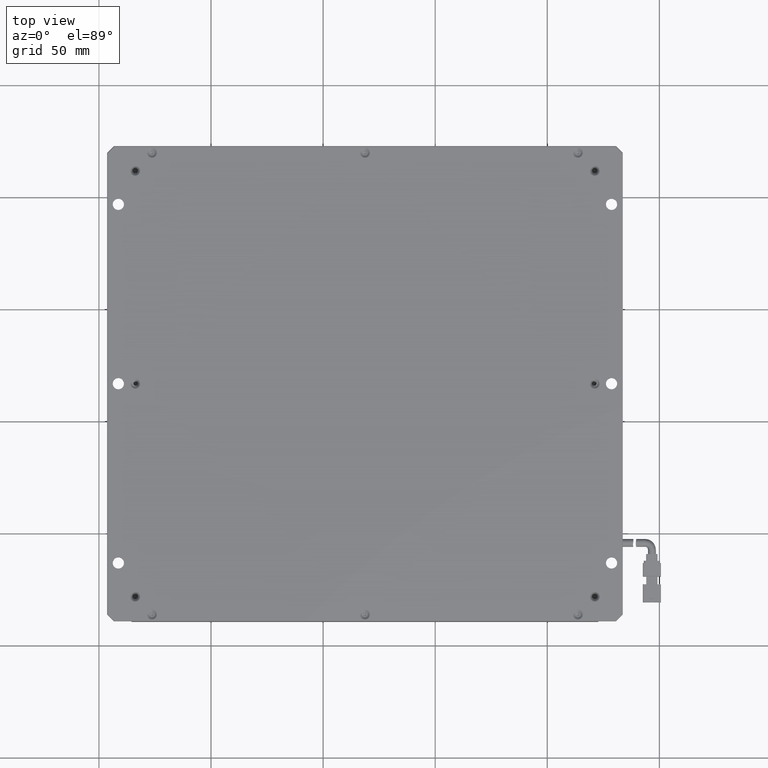
[diagram: clean part render]
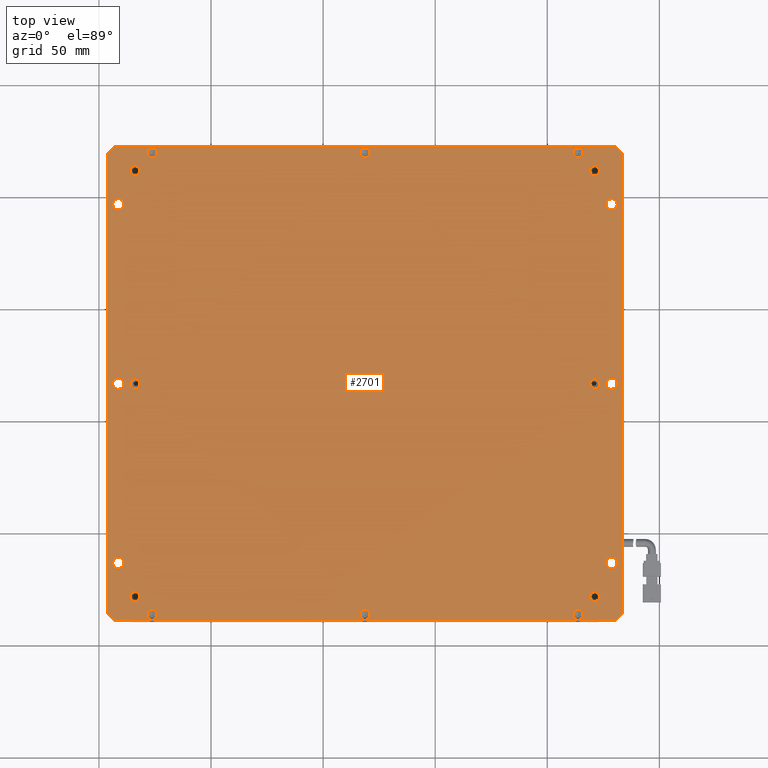
[diagram: same view with one face highlighted and labeled with its STEP entity id]
A machine part, top view. The second image highlights one B-rep face of the part: STEP entity #2701.
In plain terms, the highlighted planar face has unit normal (0, -0, 1).
Its self-contained STEP definition (entity closure, byte-faithful):
#31 = CARTESIAN_POINT ( 'NONE',  ( 133.3657505824761200, -136.2544899140688400, 1.999999999976360900 ) ) ;
#55 = FACE_BOUND ( 'NONE', #14406, .T. ) ;
#56 = DIRECTION ( 'NONE',  ( -0.0000000000000000000, 0.0000000000000000000, -1.000000000000000000 ) ) ;
#97 = DIRECTION ( 'NONE',  ( -0.0000000000000000000, 0.0000000000000000000, -1.000000000000000000 ) ) ;
#111 = DIRECTION ( 'NONE',  ( -0.0000000000000000000, 0.0000000000000000000, -1.000000000000000000 ) ) ;
#278 = CARTESIAN_POINT ( 'NONE',  ( 133.3657505824761200, -136.2544899140688700, 1.999999999976354900 ) ) ;
#289 = CARTESIAN_POINT ( 'NONE',  ( 126.1657505824760600, -113.3787539827808200, 1.999999999976353100 ) ) ;
#351 = CARTESIAN_POINT ( 'NONE',  ( 128.6657505824760500, 46.62124601721915000, 1.999999999976353100 ) ) ;
#354 = AXIS2_PLACEMENT_3D ( 'NONE', #14399, #21364, #11117 ) ;
#358 = CARTESIAN_POINT ( 'NONE',  ( -83.83424941752387800, -33.37875398278082900, 1.999999999985902800 ) ) ;
#465 = LINE ( 'NONE', #21993, #5090 ) ;
#562 = CARTESIAN_POINT ( 'NONE',  ( -86.03424941758552800, -33.37875398278082900, 1.999999999985902800 ) ) ;
#585 = AXIS2_PLACEMENT_3D ( 'NONE', #21736, #11426, #1011 ) ;
#626 = FACE_BOUND ( 'NONE', #12512, .T. ) ;
#668 = EDGE_CURVE ( 'NONE', #17276, #10589, #10313, .T. ) ;
#705 = EDGE_LOOP ( 'NONE', ( #8175, #8141 ) ) ;
#711 = DIRECTION ( 'NONE',  ( 1.000000000000000000, 0.0000000000000000000, 0.0000000000000000000 ) ) ;
#720 = AXIS2_PLACEMENT_3D ( 'NONE', #4820, #16910, #6558 ) ;
#845 = ORIENTED_EDGE ( 'NONE', *, *, #6017, .F. ) ;
#902 = VERTEX_POINT ( 'NONE', #9834 ) ;
#933 = CARTESIAN_POINT ( 'NONE',  ( 133.3657505824760700, 72.62124601721916400, 1.999999999976353600 ) ) ;
#991 = VERTEX_POINT ( 'NONE', #14309 ) ;
#1004 = EDGE_CURVE ( 'NONE', #19987, #902, #6155, .T. ) ;
#1011 = DIRECTION ( 'NONE',  ( 1.000000000000000000, 0.0000000000000000000, 0.0000000000000000000 ) ) ;
#1036 = DIRECTION ( 'NONE',  ( 1.347358039593765400E-016, -1.000000000000000000, 1.347358039593637200E-016 ) ) ;
#1100 = CARTESIAN_POINT ( 'NONE',  ( -83.83424941752389300, 61.62124601721919200, 1.999999999985902800 ) ) ;
#1120 = AXIS2_PLACEMENT_3D ( 'NONE', #7167, #19265, #8932 ) ;
#1175 = FACE_BOUND ( 'NONE', #10570, .T. ) ;
#1185 = ORIENTED_EDGE ( 'NONE', *, *, #12862, .F. ) ;
#1231 = CARTESIAN_POINT ( 'NONE',  ( -96.03424941752389500, 72.62124601721916400, 1.999999999976353100 ) ) ;
#1250 = VERTEX_POINT ( 'NONE', #18148 ) ;
#1370 = ORIENTED_EDGE ( 'NONE', *, *, #19369, .F. ) ;
#1418 = ORIENTED_EDGE ( 'NONE', *, *, #15471, .F. ) ;
#1481 = AXIS2_PLACEMENT_3D ( 'NONE', #7990, #20069, #17645 ) ;
#1590 = EDGE_CURVE ( 'NONE', #1250, #991, #14094, .T. ) ;
#1623 = DIRECTION ( 'NONE',  ( 0.0000000000000000000, 0.0000000000000000000, -1.000000000000000000 ) ) ;
#1709 = FACE_BOUND ( 'NONE', #10010, .T. ) ;
#1822 = CIRCLE ( 'NONE', #16445, 2.500000000000002200 ) ;
#1888 = CARTESIAN_POINT ( 'NONE',  ( 18.66575058247609000, -136.3787539827808600, 1.999999999985902800 ) ) ;
#1906 = ORIENTED_EDGE ( 'NONE', *, *, #2255, .F. ) ;
#1927 = ORIENTED_EDGE ( 'NONE', *, *, #668, .F. ) ;
#1948 = ORIENTED_EDGE ( 'NONE', *, *, #7228, .F. ) ;
#1963 = ORIENTED_EDGE ( 'NONE', *, *, #7939, .F. ) ;
#1964 = CARTESIAN_POINT ( 'NONE',  ( -74.13424941752589300, 69.62124601721916400, 1.999999999985902800 ) ) ;
#2099 = DIRECTION ( 'NONE',  ( 1.000000000000000000, 0.0000000000000000000, 0.0000000000000000000 ) ) ;
#2105 = DIRECTION ( 'NONE',  ( 1.000000000000000000, 0.0000000000000000000, 0.0000000000000000000 ) ) ;
#2128 = EDGE_CURVE ( 'NONE', #20707, #19038, #10778, .T. ) ;
#2255 = EDGE_CURVE ( 'NONE', #9217, #17276, #15633, .T. ) ;
#2325 = DIRECTION ( 'NONE',  ( -0.0000000000000000000, -0.0000000000000000000, -1.000000000000000000 ) ) ;
#2337 = EDGE_CURVE ( 'NONE', #991, #1250, #21544, .T. ) ;
#2374 = CARTESIAN_POINT ( 'NONE',  ( 113.6657505824760800, 69.62124601721916400, 1.999999999985902800 ) ) ;
#2467 = DIRECTION ( 'NONE',  ( 1.000000000000000000, 0.0000000000000000000, 0.0000000000000000000 ) ) ;
#2498 = ORIENTED_EDGE ( 'NONE', *, *, #17199, .T. ) ;
#2633 = VERTEX_POINT ( 'NONE', #11605 ) ;
#2639 = CARTESIAN_POINT ( 'NONE',  ( -96.03424941752389500, -136.2544899140688400, 1.999999999976353100 ) ) ;
#2694 = ORIENTED_EDGE ( 'NONE', *, *, #14245, .T. ) ;
#2701 = ADVANCED_FACE ( 'NONE', ( #10424, #15016, #19582, #6328, #1709, #5805, #1175, #19049, #14495, #9865, #5270, #626, #18502, #13943, #9328, #4690, #55, #17956, #13380 ), #5769, .T. ) ;
#2708 = ORIENTED_EDGE ( 'NONE', *, *, #16785, .T. ) ;
#2738 = ORIENTED_EDGE ( 'NONE', *, *, #2128, .T. ) ;
#2768 = VERTEX_POINT ( 'NONE', #1964 ) ;
#2805 = DIRECTION ( 'NONE',  ( 1.000000000000000000, 0.0000000000000000000, 0.0000000000000000000 ) ) ;
#2828 = CARTESIAN_POINT ( 'NONE',  ( 133.6657505824760800, -139.0787539827808200, 1.999999999976352700 ) ) ;
#2850 = VERTEX_POINT ( 'NONE', #20533 ) ;
#2963 = ORIENTED_EDGE ( 'NONE', *, *, #12767, .T. ) ;
#3023 = VERTEX_POINT ( 'NONE', #11225 ) ;
#3455 = CARTESIAN_POINT ( 'NONE',  ( -91.33424941752386400, -113.3787539827808200, 1.999999999976353100 ) ) ;
#3542 = ORIENTED_EDGE ( 'NONE', *, *, #15149, .T. ) ;
#3567 = ORIENTED_EDGE ( 'NONE', *, *, #21987, .T. ) ;
#3621 = DIRECTION ( 'NONE',  ( 1.000000000000000000, 0.0000000000000000000, 0.0000000000000000000 ) ) ;
#3682 = DIRECTION ( 'NONE',  ( -0.0000000000000000000, 0.0000000000000000000, -1.000000000000000000 ) ) ;
#3804 = ORIENTED_EDGE ( 'NONE', *, *, #10905, .T. ) ;
#3830 = ORIENTED_EDGE ( 'NONE', *, *, #19967, .T. ) ;
#3860 = DIRECTION ( 'NONE',  ( 0.7071067811865474600, -0.7071067811865474600, -1.085800321343647500E-016 ) ) ;
#3863 = ORIENTED_EDGE ( 'NONE', *, *, #4491, .T. ) ;
#3932 = CARTESIAN_POINT ( 'NONE',  ( 130.5414865137641100, 72.32124601721918100, 1.999999999976367800 ) ) ;
#4018 = CARTESIAN_POINT ( 'NONE',  ( 126.1657505824760600, 46.62124601721915000, 1.999999999976353100 ) ) ;
#4095 = CARTESIAN_POINT ( 'NONE',  ( -93.83424941752387800, 46.62124601721917800, 1.999999999976353100 ) ) ;
#4213 = EDGE_CURVE ( 'NONE', #4768, #6559, #12262, .T. ) ;
#4221 = VERTEX_POINT ( 'NONE', #289 ) ;
#4248 = CIRCLE ( 'NONE', #13276, 2.199999999932061600 ) ;
#4383 = VERTEX_POINT ( 'NONE', #18773 ) ;
#4399 = ORIENTED_EDGE ( 'NONE', *, *, #21866, .T. ) ;
#4434 = VERTEX_POINT ( 'NONE', #6818 ) ;
#4435 = ORIENTED_EDGE ( 'NONE', *, *, #5129, .T. ) ;
#4470 = CARTESIAN_POINT ( 'NONE',  ( 130.5414865137641100, 72.32124601721918100, 1.999999999976356700 ) ) ;
#4491 = EDGE_CURVE ( 'NONE', #8828, #7768, #15172, .T. ) ;
#4555 = CARTESIAN_POINT ( 'NONE',  ( -93.20998534881194100, -139.0787539827808200, 1.999999999976353100 ) ) ;
#4567 = CIRCLE ( 'NONE', #6431, 2.199999999932117600 ) ;
#4639 = ORIENTED_EDGE ( 'NONE', *, *, #19136, .T. ) ;
#4655 = ORIENTED_EDGE ( 'NONE', *, *, #1004, .T. ) ;
#4681 = VERTEX_POINT ( 'NONE', #16038 ) ;
#4690 = FACE_BOUND ( 'NONE', #13754, .T. ) ;
#4727 = VERTEX_POINT ( 'NONE', #562 ) ;
#4768 = VERTEX_POINT ( 'NONE', #19759 ) ;
#4820 = CARTESIAN_POINT ( 'NONE',  ( -83.83424941752387800, -33.37875398278082900, 1.999999999985902800 ) ) ;
#4914 = ORIENTED_EDGE ( 'NONE', *, *, #1590, .T. ) ;
#5090 = VECTOR ( 'NONE', #9930, 1000.000000000000000 ) ;
#5129 = EDGE_CURVE ( 'NONE', #11323, #10167, #17519, .T. ) ;
#5154 = DIRECTION ( 'NONE',  ( 1.000000000000000000, 0.0000000000000000000, -0.0000000000000000000 ) ) ;
#5190 = LINE ( 'NONE', #2828, #9254 ) ;
#5231 = DIRECTION ( 'NONE',  ( 1.000000000000000000, 0.0000000000000000000, 0.0000000000000000000 ) ) ;
#5259 = DIRECTION ( 'NONE',  ( -0.0000000000000000000, 0.0000000000000000000, -1.000000000000000000 ) ) ;
#5270 = FACE_BOUND ( 'NONE', #12164, .T. ) ;
#5300 = AXIS2_PLACEMENT_3D ( 'NONE', #15703, #5346, #17419 ) ;
#5307 = DIRECTION ( 'NONE',  ( 0.0000000000000000000, -0.0000000000000000000, 1.000000000000000000 ) ) ;
#5346 = DIRECTION ( 'NONE',  ( 0.0000000000000000000, 0.0000000000000000000, -1.000000000000000000 ) ) ;
#5379 = CARTESIAN_POINT ( 'NONE',  ( 133.6657505824760800, 72.62124601721916400, 1.999999999976353100 ) ) ;
#5483 = ORIENTED_EDGE ( 'NONE', *, *, #2337, .T. ) ;
#5508 = ORIENTED_EDGE ( 'NONE', *, *, #21307, .T. ) ;
#5608 = VERTEX_POINT ( 'NONE', #7618 ) ;
#5721 = ORIENTED_EDGE ( 'NONE', *, *, #7318, .T. ) ;
#5750 = ORIENTED_EDGE ( 'NONE', *, *, #22021, .T. ) ;
#5769 = PLANE ( 'NONE',  #20904 ) ;
#5772 = ORIENTED_EDGE ( 'NONE', *, *, #8436, .T. ) ;
#5775 = DIRECTION ( 'NONE',  ( -0.0000000000000000000, 0.0000000000000000000, -1.000000000000000000 ) ) ;
#5805 = FACE_BOUND ( 'NONE', #11335, .T. ) ;
#5927 = VECTOR ( 'NONE', #9415, 1000.000000000000100 ) ;
#6017 = EDGE_CURVE ( 'NONE', #18872, #15381, #10422, .T. ) ;
#6073 = CARTESIAN_POINT ( 'NONE',  ( -74.13424941752589300, -136.3787539827808100, 1.999999999985902800 ) ) ;
#6074 = AXIS2_PLACEMENT_3D ( 'NONE', #14115, #3682, #15823 ) ;
#6155 = CIRCLE ( 'NONE', #16224, 2.200000000025306600 ) ;
#6181 = CIRCLE ( 'NONE', #14328, 2.200000000061666400 ) ;
#6200 = AXIS2_PLACEMENT_3D ( 'NONE', #1888, #14053, #3621 ) ;
#6217 = DIRECTION ( 'NONE',  ( -0.0000000000000000000, 0.0000000000000000000, -1.000000000000000000 ) ) ;
#6289 = ORIENTED_EDGE ( 'NONE', *, *, #12267, .T. ) ;
#6316 = ORIENTED_EDGE ( 'NONE', *, *, #7692, .T. ) ;
#6324 = AXIS2_PLACEMENT_3D ( 'NONE', #3455, #15588, #5231 ) ;
#6328 = FACE_BOUND ( 'NONE', #9788, .T. ) ;
#6377 = VERTEX_POINT ( 'NONE', #20774 ) ;
#6393 = VERTEX_POINT ( 'NONE', #12218 ) ;
#6431 = AXIS2_PLACEMENT_3D ( 'NONE', #10494, #56, #12260 ) ;
#6462 = AXIS2_PLACEMENT_3D ( 'NONE', #16137, #5775, #17859 ) ;
#6475 = EDGE_CURVE ( 'NONE', #15350, #9242, #18486, .T. ) ;
#6558 = DIRECTION ( 'NONE',  ( 1.000000000000000000, 0.0000000000000000000, 0.0000000000000000000 ) ) ;
#6559 = VERTEX_POINT ( 'NONE', #17428 ) ;
#6576 = ORIENTED_EDGE ( 'NONE', *, *, #18100, .T. ) ;
#6585 = ORIENTED_EDGE ( 'NONE', *, *, #21661, .T. ) ;
#6643 = CARTESIAN_POINT ( 'NONE',  ( -91.33424941752386400, -113.3787539827808200, 1.999999999976353100 ) ) ;
#6681 = CARTESIAN_POINT ( 'NONE',  ( 128.6657505824760500, 46.62124601721915000, 1.999999999976353100 ) ) ;
#6699 = CARTESIAN_POINT ( 'NONE',  ( 130.5414865137641700, -139.0787539827808200, 1.999999999976354900 ) ) ;
#6751 = CARTESIAN_POINT ( 'NONE',  ( 126.1657505824760600, -33.37875398278082900, 1.999999999976353100 ) ) ;
#6810 = EDGE_CURVE ( 'NONE', #9242, #15350, #15482, .T. ) ;
#6818 = CARTESIAN_POINT ( 'NONE',  ( 131.1657505824760800, -113.3787539827808200, 1.999999999976353100 ) ) ;
#6823 = ORIENTED_EDGE ( 'NONE', *, *, #6810, .T. ) ;
#6890 = CIRCLE ( 'NONE', #6324, 2.500000000000002200 ) ;
#6948 = DIRECTION ( 'NONE',  ( -0.0000000000000000000, 0.0000000000000000000, -1.000000000000000000 ) ) ;
#6977 = CIRCLE ( 'NONE', #21671, 2.199999999998023100 ) ;
#7063 = AXIS2_PLACEMENT_3D ( 'NONE', #6643, #18761, #8388 ) ;
#7122 = CARTESIAN_POINT ( 'NONE',  ( -93.20998534881194100, -139.0787539827808200, 1.999999999976352700 ) ) ;
#7129 = ORIENTED_EDGE ( 'NONE', *, *, #6475, .T. ) ;
#7167 = CARTESIAN_POINT ( 'NONE',  ( 113.6657505824761600, -136.3787539827808900, 1.999999999985902800 ) ) ;
#7228 = EDGE_CURVE ( 'NONE', #10589, #18536, #9062, .T. ) ;
#7304 = DIRECTION ( 'NONE',  ( 0.0000000000000000000, 0.0000000000000000000, -1.000000000000000000 ) ) ;
#7318 = EDGE_CURVE ( 'NONE', #2768, #2850, #17128, .T. ) ;
#7343 = ORIENTED_EDGE ( 'NONE', *, *, #12928, .T. ) ;
#7370 = CARTESIAN_POINT ( 'NONE',  ( 121.1657505824761100, -33.37875398278082900, 1.999999999929059400 ) ) ;
#7399 = ORIENTED_EDGE ( 'NONE', *, *, #9496, .T. ) ;
#7417 = CIRCLE ( 'NONE', #12347, 2.199999999932061600 ) ;
#7432 = ORIENTED_EDGE ( 'NONE', *, *, #22462, .T. ) ;
#7474 = CIRCLE ( 'NONE', #18789, 2.500000000000002200 ) ;
#7618 = CARTESIAN_POINT ( 'NONE',  ( -93.83424941752386400, -113.3787539827808200, 1.999999999976353100 ) ) ;
#7626 = ORIENTED_EDGE ( 'NONE', *, *, #8346, .T. ) ;
#7692 = EDGE_CURVE ( 'NONE', #4681, #4727, #19788, .T. ) ;
#7768 = VERTEX_POINT ( 'NONE', #16059 ) ;
#7862 = AXIS2_PLACEMENT_3D ( 'NONE', #7370, #19452, #9117 ) ;
#7885 = VECTOR ( 'NONE', #1036, 1000.000000000000000 ) ;
#7896 = DIRECTION ( 'NONE',  ( -0.0000000000000000000, 0.0000000000000000000, -1.000000000000000000 ) ) ;
#7915 = AXIS2_PLACEMENT_3D ( 'NONE', #17642, #7304, #19382 ) ;
#7939 = EDGE_CURVE ( 'NONE', #18536, #18872, #5190, .T. ) ;
#7990 = CARTESIAN_POINT ( 'NONE',  ( -91.33424941752386400, -33.37875398278082900, 1.999999999976353100 ) ) ;
#8098 = DIRECTION ( 'NONE',  ( 0.0000000000000000000, 0.0000000000000000000, -1.000000000000000000 ) ) ;
#8141 = ORIENTED_EDGE ( 'NONE', *, *, #4213, .T. ) ;
#8175 = ORIENTED_EDGE ( 'NONE', *, *, #15126, .T. ) ;
#8189 = DIRECTION ( 'NONE',  ( -0.0000000000000000000, 0.0000000000000000000, -1.000000000000000000 ) ) ;
#8197 = ORIENTED_EDGE ( 'NONE', *, *, #13079, .T. ) ;
#8200 = VERTEX_POINT ( 'NONE', #8935 ) ;
#8217 = ORIENTED_EDGE ( 'NONE', *, *, #18001, .T. ) ;
#8236 = CIRCLE ( 'NONE', #7063, 2.500000000000002200 ) ;
#8341 = EDGE_LOOP ( 'NONE', ( #8217, #8197 ) ) ;
#8346 = EDGE_CURVE ( 'NONE', #8491, #8200, #20800, .T. ) ;
#8347 = CARTESIAN_POINT ( 'NONE',  ( 18.66575058247609000, -136.3787539827808600, 1.999999999985902800 ) ) ;
#8388 = DIRECTION ( 'NONE',  ( 1.000000000000000000, 0.0000000000000000000, 0.0000000000000000000 ) ) ;
#8431 = DIRECTION ( 'NONE',  ( 1.000000000000000000, 0.0000000000000000000, 0.0000000000000000000 ) ) ;
#8436 = EDGE_CURVE ( 'NONE', #3023, #4383, #6181, .T. ) ;
#8467 = ORIENTED_EDGE ( 'NONE', *, *, #13382, .T. ) ;
#8491 = VERTEX_POINT ( 'NONE', #17898 ) ;
#8544 = CARTESIAN_POINT ( 'NONE',  ( 121.1657505824761100, -33.37875398278082900, 1.999999999929059400 ) ) ;
#8828 = VERTEX_POINT ( 'NONE', #17116 ) ;
#8862 = CARTESIAN_POINT ( 'NONE',  ( 118.9657505825440500, -33.37875398278082900, 1.999999999929059400 ) ) ;
#8884 = DIRECTION ( 'NONE',  ( -0.7071067811865473500, 0.7071067811865477900, -1.085800321343646600E-016 ) ) ;
#8932 = DIRECTION ( 'NONE',  ( 1.000000000000000000, 0.0000000000000000000, 0.0000000000000000000 ) ) ;
#8935 = CARTESIAN_POINT ( 'NONE',  ( 111.4657505824804800, -136.3787539827808900, 1.999999999985902800 ) ) ;
#8987 = ORIENTED_EDGE ( 'NONE', *, *, #15674, .T. ) ;
#9062 = LINE ( 'NONE', #278, #17679 ) ;
#9117 = DIRECTION ( 'NONE',  ( 1.000000000000000000, 0.0000000000000000000, 0.0000000000000000000 ) ) ;
#9125 = AXIS2_PLACEMENT_3D ( 'NONE', #9165, #21231, #10910 ) ;
#9165 = CARTESIAN_POINT ( 'NONE',  ( -76.33424941752390700, -136.3787539827808100, 1.999999999985902800 ) ) ;
#9217 = VERTEX_POINT ( 'NONE', #4470 ) ;
#9242 = VERTEX_POINT ( 'NONE', #9873 ) ;
#9254 = VECTOR ( 'NONE', #14986, 1000.000000000000000 ) ;
#9305 = CIRCLE ( 'NONE', #21463, 2.200000000025306600 ) ;
#9328 = FACE_BOUND ( 'NONE', #14080, .T. ) ;
#9409 = AXIS2_PLACEMENT_3D ( 'NONE', #6681, #18788, #8431 ) ;
#9415 = DIRECTION ( 'NONE',  ( 0.7071067811865422400, 0.7071067811865526800, -1.737280514149848800E-015 ) ) ;
#9496 = EDGE_CURVE ( 'NONE', #19397, #6377, #11292, .T. ) ;
#9788 = EDGE_LOOP ( 'NONE', ( #7626, #7432 ) ) ;
#9834 = CARTESIAN_POINT ( 'NONE',  ( 16.46575058245078400, 69.62124601721916400, 1.999999999985902800 ) ) ;
#9865 = FACE_BOUND ( 'NONE', #12769, .T. ) ;
#9873 = CARTESIAN_POINT ( 'NONE',  ( -78.53424941752193400, -136.3787539827808100, 1.999999999985902800 ) ) ;
#9930 = DIRECTION ( 'NONE',  ( 1.000000000000000000, 0.0000000000000000000, 0.0000000000000000000 ) ) ;
#10005 = CIRCLE ( 'NONE', #11801, 2.200000000025306600 ) ;
#10010 = EDGE_LOOP ( 'NONE', ( #7399, #7343 ) ) ;
#10097 = DIRECTION ( 'NONE',  ( 1.000000000000000000, 0.0000000000000000000, 0.0000000000000000000 ) ) ;
#10111 = DIRECTION ( 'NONE',  ( 1.000000000000000000, 0.0000000000000000000, 0.0000000000000000000 ) ) ;
#10161 = DIRECTION ( 'NONE',  ( 1.000000000000000000, 0.0000000000000000000, 0.0000000000000000000 ) ) ;
#10167 = VERTEX_POINT ( 'NONE', #4095 ) ;
#10309 = DIRECTION ( 'NONE',  ( 1.000000000000000000, 0.0000000000000000000, 0.0000000000000000000 ) ) ;
#10313 = LINE ( 'NONE', #933, #7885 ) ;
#10330 = DIRECTION ( 'NONE',  ( 0.0000000000000000000, 0.0000000000000000000, -1.000000000000000000 ) ) ;
#10346 = CARTESIAN_POINT ( 'NONE',  ( 133.3657505824760700, 69.49698194850722600, 1.999999999976357100 ) ) ;
#10404 = CARTESIAN_POINT ( 'NONE',  ( 128.6657505824760500, -33.37875398278082900, 1.999999999976353100 ) ) ;
#10417 = CARTESIAN_POINT ( 'NONE',  ( 123.3657505824081700, -128.3787539827808100, 1.999999999929059400 ) ) ;
#10422 = LINE ( 'NONE', #7122, #14494 ) ;
#10424 = FACE_BOUND ( 'NONE', #20377, .T. ) ;
#10494 = CARTESIAN_POINT ( 'NONE',  ( 121.1657505824760500, 61.62124601721919200, 1.999999999929059400 ) ) ;
#10534 = CARTESIAN_POINT ( 'NONE',  ( -83.83424941752389300, 61.62124601721919200, 1.999999999985902800 ) ) ;
#10540 = LINE ( 'NONE', #21474, #5927 ) ;
#10548 = CARTESIAN_POINT ( 'NONE',  ( 121.1657505824761100, -128.3787539827808100, 1.999999999929059400 ) ) ;
#10570 = EDGE_LOOP ( 'NONE', ( #6585, #6576 ) ) ;
#10589 = VERTEX_POINT ( 'NONE', #31 ) ;
#10707 = DIRECTION ( 'NONE',  ( -0.7071067811865526800, -0.7071067811865422400, 1.737280514149831800E-015 ) ) ;
#10778 = CIRCLE ( 'NONE', #13962, 2.500000000000002200 ) ;
#10800 = AXIS2_PLACEMENT_3D ( 'NONE', #16590, #6217, #18321 ) ;
#10905 = EDGE_CURVE ( 'NONE', #6393, #5608, #8236, .T. ) ;
#10910 = DIRECTION ( 'NONE',  ( 1.000000000000000000, 0.0000000000000000000, 0.0000000000000000000 ) ) ;
#11061 = EDGE_LOOP ( 'NONE', ( #6316, #6289 ) ) ;
#11117 = DIRECTION ( 'NONE',  ( 1.000000000000000000, 0.0000000000000000000, 0.0000000000000000000 ) ) ;
#11124 = DIRECTION ( 'NONE',  ( -0.0000000000000000000, -0.0000000000000000000, -1.000000000000000000 ) ) ;
#11225 = CARTESIAN_POINT ( 'NONE',  ( -81.63424941746222900, 61.62124601721919200, 1.999999999985902800 ) ) ;
#11292 = CIRCLE ( 'NONE', #6200, 2.200000000025306600 ) ;
#11323 = VERTEX_POINT ( 'NONE', #14809 ) ;
#11335 = EDGE_LOOP ( 'NONE', ( #7129, #6823 ) ) ;
#11426 = DIRECTION ( 'NONE',  ( 0.0000000000000000000, 0.0000000000000000000, -1.000000000000000000 ) ) ;
#11486 = VECTOR ( 'NONE', #11646, 1000.000000000000000 ) ;
#11586 = VERTEX_POINT ( 'NONE', #10417 ) ;
#11605 = CARTESIAN_POINT ( 'NONE',  ( -81.63424941746222900, -128.3787539827808100, 1.999999999985902800 ) ) ;
#11646 = DIRECTION ( 'NONE',  ( -0.0000000000000000000, 1.000000000000000000, 0.0000000000000000000 ) ) ;
#11759 = VERTEX_POINT ( 'NONE', #12892 ) ;
#11765 = CIRCLE ( 'NONE', #585, 2.500000000000002200 ) ;
#11801 = AXIS2_PLACEMENT_3D ( 'NONE', #15618, #5259, #17330 ) ;
#11860 = CIRCLE ( 'NONE', #1481, 2.500000000000002200 ) ;
#11885 = DIRECTION ( 'NONE',  ( 0.0000000000000000000, 0.0000000000000000000, -1.000000000000000000 ) ) ;
#12041 = LINE ( 'NONE', #1231, #11486 ) ;
#12044 = CARTESIAN_POINT ( 'NONE',  ( 128.6657505824760500, -33.37875398278082900, 1.999999999976353100 ) ) ;
#12056 = VERTEX_POINT ( 'NONE', #8862 ) ;
#12164 = EDGE_LOOP ( 'NONE', ( #5483, #4914 ) ) ;
#12218 = CARTESIAN_POINT ( 'NONE',  ( -88.83424941752386400, -113.3787539827808200, 1.999999999976353100 ) ) ;
#12237 = EDGE_LOOP ( 'NONE', ( #5772, #5750 ) ) ;
#12260 = DIRECTION ( 'NONE',  ( 1.000000000000000000, 0.0000000000000000000, 0.0000000000000000000 ) ) ;
#12262 = CIRCLE ( 'NONE', #354, 2.199999999932117600 ) ;
#12267 = EDGE_CURVE ( 'NONE', #4727, #4681, #13989, .T. ) ;
#12294 = DIRECTION ( 'NONE',  ( 1.000000000000000000, 0.0000000000000000000, 0.0000000000000000000 ) ) ;
#12305 = DIRECTION ( 'NONE',  ( 1.000000000000000000, 0.0000000000000000000, 0.0000000000000000000 ) ) ;
#12347 = AXIS2_PLACEMENT_3D ( 'NONE', #8544, #20626, #10309 ) ;
#12437 = AXIS2_PLACEMENT_3D ( 'NONE', #21439, #11124, #711 ) ;
#12512 = EDGE_LOOP ( 'NONE', ( #4655, #4639 ) ) ;
#12527 = DIRECTION ( 'NONE',  ( 0.0000000000000000000, 0.0000000000000000000, -1.000000000000000000 ) ) ;
#12534 = DIRECTION ( 'NONE',  ( -0.0000000000000000000, 0.0000000000000000000, -1.000000000000000000 ) ) ;
#12694 = VERTEX_POINT ( 'NONE', #14529 ) ;
#12767 = EDGE_CURVE ( 'NONE', #4221, #4434, #11765, .T. ) ;
#12769 = EDGE_LOOP ( 'NONE', ( #5721, #5508 ) ) ;
#12862 = EDGE_CURVE ( 'NONE', #15381, #17038, #12041, .T. ) ;
#12889 = CARTESIAN_POINT ( 'NONE',  ( 20.86575058250139800, -136.3787539827808600, 1.999999999985902800 ) ) ;
#12892 = CARTESIAN_POINT ( 'NONE',  ( 123.3657505824081700, -33.37875398278082900, 1.999999999929059400 ) ) ;
#12928 = EDGE_CURVE ( 'NONE', #6377, #19397, #9305, .T. ) ;
#13025 = EDGE_LOOP ( 'NONE', ( #4435, #4399 ) ) ;
#13079 = EDGE_CURVE ( 'NONE', #12056, #11759, #16818, .T. ) ;
#13120 = VERTEX_POINT ( 'NONE', #4018 ) ;
#13216 = DIRECTION ( 'NONE',  ( -0.0000000000000000000, 0.0000000000000000000, -1.000000000000000000 ) ) ;
#13276 = AXIS2_PLACEMENT_3D ( 'NONE', #17312, #6948, #19071 ) ;
#13380 = FACE_OUTER_BOUND ( 'NONE', #15712, .T. ) ;
#13382 = EDGE_CURVE ( 'NONE', #14981, #11586, #19497, .T. ) ;
#13606 = CARTESIAN_POINT ( 'NONE',  ( -91.33424941752386400, -33.37875398278082900, 1.999999999976353100 ) ) ;
#13754 = EDGE_LOOP ( 'NONE', ( #3542, #2963 ) ) ;
#13759 = DIRECTION ( 'NONE',  ( 1.000000000000000000, 0.0000000000000000000, 0.0000000000000000000 ) ) ;
#13943 = FACE_BOUND ( 'NONE', #14152, .T. ) ;
#13962 = AXIS2_PLACEMENT_3D ( 'NONE', #10404, #10330, #10161 ) ;
#13989 = CIRCLE ( 'NONE', #720, 2.200000000061652600 ) ;
#13997 = AXIS2_PLACEMENT_3D ( 'NONE', #10548, #111, #12305 ) ;
#14053 = DIRECTION ( 'NONE',  ( -0.0000000000000000000, 0.0000000000000000000, -1.000000000000000000 ) ) ;
#14080 = EDGE_LOOP ( 'NONE', ( #3804, #3567 ) ) ;
#14094 = CIRCLE ( 'NONE', #17530, 2.199999999995760900 ) ;
#14115 = CARTESIAN_POINT ( 'NONE',  ( -83.83424941752387800, -128.3787539827808100, 1.999999999985902800 ) ) ;
#14152 = EDGE_LOOP ( 'NONE', ( #3863, #3830 ) ) ;
#14245 = EDGE_CURVE ( 'NONE', #15057, #13120, #1822, .T. ) ;
#14309 = CARTESIAN_POINT ( 'NONE',  ( 115.8657505824718300, 69.62124601721916400, 1.999999999985902800 ) ) ;
#14328 = AXIS2_PLACEMENT_3D ( 'NONE', #1100, #13216, #2805 ) ;
#14399 = CARTESIAN_POINT ( 'NONE',  ( 121.1657505824760500, 61.62124601721919200, 1.999999999929059400 ) ) ;
#14406 = EDGE_LOOP ( 'NONE', ( #2738, #2708 ) ) ;
#14491 = AXIS2_PLACEMENT_3D ( 'NONE', #10534, #97, #12294 ) ;
#14494 = VECTOR ( 'NONE', #8884, 1000.000000000000000 ) ;
#14495 = FACE_BOUND ( 'NONE', #12237, .T. ) ;
#14529 = CARTESIAN_POINT ( 'NONE',  ( -86.03424941758552800, -128.3787539827808100, 1.999999999985902800 ) ) ;
#14583 = AXIS2_PLACEMENT_3D ( 'NONE', #358, #12534, #2105 ) ;
#14678 = EDGE_LOOP ( 'NONE', ( #2694, #2498 ) ) ;
#14809 = CARTESIAN_POINT ( 'NONE',  ( -88.83424941752387800, 46.62124601721917800, 1.999999999976353100 ) ) ;
#14831 = CIRCLE ( 'NONE', #6462, 2.200000000061652600 ) ;
#14981 = VERTEX_POINT ( 'NONE', #20052 ) ;
#14986 = DIRECTION ( 'NONE',  ( -1.000000000000000000, -0.0000000000000000000, -0.0000000000000000000 ) ) ;
#15016 = FACE_BOUND ( 'NONE', #8341, .T. ) ;
#15057 = VERTEX_POINT ( 'NONE', #22173 ) ;
#15126 = EDGE_CURVE ( 'NONE', #6559, #4768, #4567, .T. ) ;
#15149 = EDGE_CURVE ( 'NONE', #4434, #4221, #18379, .T. ) ;
#15172 = CIRCLE ( 'NONE', #19942, 2.500000000000002200 ) ;
#15350 = VERTEX_POINT ( 'NONE', #6073 ) ;
#15381 = VERTEX_POINT ( 'NONE', #2639 ) ;
#15404 = DIRECTION ( 'NONE',  ( 1.000000000000000000, 0.0000000000000000000, 0.0000000000000000000 ) ) ;
#15471 = EDGE_CURVE ( 'NONE', #18914, #9217, #465, .T. ) ;
#15482 = CIRCLE ( 'NONE', #17852, 2.199999999998023100 ) ;
#15488 = DIRECTION ( 'NONE',  ( -0.0000000000000000000, 0.0000000000000000000, -1.000000000000000000 ) ) ;
#15570 = CARTESIAN_POINT ( 'NONE',  ( 18.66575058247609000, 69.62124601721916400, 1.999999999985902800 ) ) ;
#15588 = DIRECTION ( 'NONE',  ( 0.0000000000000000000, 0.0000000000000000000, -1.000000000000000000 ) ) ;
#15618 = CARTESIAN_POINT ( 'NONE',  ( 18.66575058247609000, 69.62124601721916400, 1.999999999985902800 ) ) ;
#15633 = LINE ( 'NONE', #3932, #19651 ) ;
#15674 = EDGE_CURVE ( 'NONE', #11586, #14981, #4248, .T. ) ;
#15703 = CARTESIAN_POINT ( 'NONE',  ( 128.6657505824760500, -113.3787539827808200, 1.999999999976353100 ) ) ;
#15712 = EDGE_LOOP ( 'NONE', ( #1963, #1948, #1927, #1906, #1418, #1370, #1185, #845 ) ) ;
#15812 = CIRCLE ( 'NONE', #9409, 2.500000000000002200 ) ;
#15823 = DIRECTION ( 'NONE',  ( 1.000000000000000000, 0.0000000000000000000, 0.0000000000000000000 ) ) ;
#15834 = AXIS2_PLACEMENT_3D ( 'NONE', #22203, #22048, #21907 ) ;
#16038 = CARTESIAN_POINT ( 'NONE',  ( -81.63424941746222900, -33.37875398278082900, 1.999999999985902800 ) ) ;
#16059 = CARTESIAN_POINT ( 'NONE',  ( -93.83424941752386400, -33.37875398278082900, 1.999999999976353100 ) ) ;
#16137 = CARTESIAN_POINT ( 'NONE',  ( -83.83424941752387800, -128.3787539827808100, 1.999999999985902800 ) ) ;
#16224 = AXIS2_PLACEMENT_3D ( 'NONE', #15570, #15488, #15404 ) ;
#16445 = AXIS2_PLACEMENT_3D ( 'NONE', #351, #12527, #2099 ) ;
#16512 = CARTESIAN_POINT ( 'NONE',  ( 20.86575058250139800, 69.62124601721916400, 1.999999999985902800 ) ) ;
#16590 = CARTESIAN_POINT ( 'NONE',  ( -76.33424941752390700, 69.62124601721916400, 1.999999999985902800 ) ) ;
#16606 = CARTESIAN_POINT ( 'NONE',  ( -96.03424941752388100, 69.49698194850722600, 1.999999999976351800 ) ) ;
#16785 = EDGE_CURVE ( 'NONE', #19038, #20707, #17404, .T. ) ;
#16818 = CIRCLE ( 'NONE', #7862, 2.199999999932061600 ) ;
#16910 = DIRECTION ( 'NONE',  ( -0.0000000000000000000, 0.0000000000000000000, -1.000000000000000000 ) ) ;
#17038 = VERTEX_POINT ( 'NONE', #16606 ) ;
#17116 = CARTESIAN_POINT ( 'NONE',  ( -88.83424941752386400, -33.37875398278082900, 1.999999999976353100 ) ) ;
#17128 = CIRCLE ( 'NONE', #10800, 2.199999999998023100 ) ;
#17199 = EDGE_CURVE ( 'NONE', #13120, #15057, #15812, .T. ) ;
#17276 = VERTEX_POINT ( 'NONE', #10346 ) ;
#17312 = CARTESIAN_POINT ( 'NONE',  ( 121.1657505824761100, -128.3787539827808100, 1.999999999929059400 ) ) ;
#17330 = DIRECTION ( 'NONE',  ( 1.000000000000000000, 0.0000000000000000000, 0.0000000000000000000 ) ) ;
#17404 = CIRCLE ( 'NONE', #17634, 2.500000000000002200 ) ;
#17419 = DIRECTION ( 'NONE',  ( 1.000000000000000000, 0.0000000000000000000, 0.0000000000000000000 ) ) ;
#17428 = CARTESIAN_POINT ( 'NONE',  ( 123.3657505824081700, 61.62124601721919200, 1.999999999929059400 ) ) ;
#17519 = CIRCLE ( 'NONE', #7915, 2.500000000000002200 ) ;
#17530 = AXIS2_PLACEMENT_3D ( 'NONE', #2374, #2325, #2467 ) ;
#17634 = AXIS2_PLACEMENT_3D ( 'NONE', #12044, #1623, #13759 ) ;
#17642 = CARTESIAN_POINT ( 'NONE',  ( -91.33424941752387800, 46.62124601721917800, 1.999999999976353100 ) ) ;
#17645 = DIRECTION ( 'NONE',  ( 1.000000000000000000, 0.0000000000000000000, 0.0000000000000000000 ) ) ;
#17679 = VECTOR ( 'NONE', #10707, 1000.000000000000100 ) ;
#17852 = AXIS2_PLACEMENT_3D ( 'NONE', #18240, #7896, #19964 ) ;
#17859 = DIRECTION ( 'NONE',  ( 1.000000000000000000, 0.0000000000000000000, 0.0000000000000000000 ) ) ;
#17898 = CARTESIAN_POINT ( 'NONE',  ( 115.8657505824718300, -136.3787539827808900, 1.999999999985902800 ) ) ;
#17956 = FACE_BOUND ( 'NONE', #14678, .T. ) ;
#17966 = CIRCLE ( 'NONE', #1120, 2.199999999995677400 ) ;
#18001 = EDGE_CURVE ( 'NONE', #11759, #12056, #7417, .T. ) ;
#18100 = EDGE_CURVE ( 'NONE', #12694, #2633, #20917, .T. ) ;
#18148 = CARTESIAN_POINT ( 'NONE',  ( 111.4657505824803100, 69.62124601721916400, 1.999999999985902800 ) ) ;
#18240 = CARTESIAN_POINT ( 'NONE',  ( -76.33424941752390700, -136.3787539827808100, 1.999999999985902800 ) ) ;
#18321 = DIRECTION ( 'NONE',  ( 1.000000000000000000, 0.0000000000000000000, 0.0000000000000000000 ) ) ;
#18379 = CIRCLE ( 'NONE', #5300, 2.500000000000002200 ) ;
#18452 = CARTESIAN_POINT ( 'NONE',  ( -91.33424941752387800, 46.62124601721917800, 1.999999999976353100 ) ) ;
#18486 = CIRCLE ( 'NONE', #9125, 2.199999999998023100 ) ;
#18502 = FACE_BOUND ( 'NONE', #13025, .T. ) ;
#18529 = CIRCLE ( 'NONE', #14491, 2.200000000061666400 ) ;
#18536 = VERTEX_POINT ( 'NONE', #6699 ) ;
#18554 = CARTESIAN_POINT ( 'NONE',  ( -76.33424941752390700, 69.62124601721916400, 1.999999999985902800 ) ) ;
#18761 = DIRECTION ( 'NONE',  ( 0.0000000000000000000, 0.0000000000000000000, -1.000000000000000000 ) ) ;
#18773 = CARTESIAN_POINT ( 'NONE',  ( -86.03424941758555600, 61.62124601721919200, 1.999999999985902800 ) ) ;
#18788 = DIRECTION ( 'NONE',  ( 0.0000000000000000000, 0.0000000000000000000, -1.000000000000000000 ) ) ;
#18789 = AXIS2_PLACEMENT_3D ( 'NONE', #18452, #8098, #20159 ) ;
#18872 = VERTEX_POINT ( 'NONE', #4555 ) ;
#18878 = CARTESIAN_POINT ( 'NONE',  ( 131.1657505824760800, -33.37875398278082900, 1.999999999976353100 ) ) ;
#18914 = VERTEX_POINT ( 'NONE', #21871 ) ;
#19038 = VERTEX_POINT ( 'NONE', #6751 ) ;
#19049 = FACE_BOUND ( 'NONE', #11061, .T. ) ;
#19071 = DIRECTION ( 'NONE',  ( 1.000000000000000000, 0.0000000000000000000, 0.0000000000000000000 ) ) ;
#19136 = EDGE_CURVE ( 'NONE', #902, #19987, #10005, .T. ) ;
#19265 = DIRECTION ( 'NONE',  ( -0.0000000000000000000, -0.0000000000000000000, -1.000000000000000000 ) ) ;
#19369 = EDGE_CURVE ( 'NONE', #17038, #18914, #10540, .T. ) ;
#19382 = DIRECTION ( 'NONE',  ( 1.000000000000000000, 0.0000000000000000000, 0.0000000000000000000 ) ) ;
#19397 = VERTEX_POINT ( 'NONE', #12889 ) ;
#19452 = DIRECTION ( 'NONE',  ( -0.0000000000000000000, 0.0000000000000000000, -1.000000000000000000 ) ) ;
#19497 = CIRCLE ( 'NONE', #13997, 2.199999999932061600 ) ;
#19582 = FACE_BOUND ( 'NONE', #705, .T. ) ;
#19651 = VECTOR ( 'NONE', #3860, 1000.000000000000100 ) ;
#19759 = CARTESIAN_POINT ( 'NONE',  ( 118.9657505825439300, 61.62124601721919200, 1.999999999929059400 ) ) ;
#19788 = CIRCLE ( 'NONE', #14583, 2.200000000061652600 ) ;
#19942 = AXIS2_PLACEMENT_3D ( 'NONE', #13606, #11885, #10111 ) ;
#19964 = DIRECTION ( 'NONE',  ( 1.000000000000000000, 0.0000000000000000000, 0.0000000000000000000 ) ) ;
#19967 = EDGE_CURVE ( 'NONE', #7768, #8828, #11860, .T. ) ;
#19987 = VERTEX_POINT ( 'NONE', #16512 ) ;
#20052 = CARTESIAN_POINT ( 'NONE',  ( 118.9657505825440500, -128.3787539827808100, 1.999999999929059400 ) ) ;
#20069 = DIRECTION ( 'NONE',  ( 0.0000000000000000000, 0.0000000000000000000, -1.000000000000000000 ) ) ;
#20159 = DIRECTION ( 'NONE',  ( 1.000000000000000000, 0.0000000000000000000, 0.0000000000000000000 ) ) ;
#20271 = DIRECTION ( 'NONE',  ( 1.000000000000000000, 0.0000000000000000000, 0.0000000000000000000 ) ) ;
#20377 = EDGE_LOOP ( 'NONE', ( #8987, #8467 ) ) ;
#20415 = DIRECTION ( 'NONE',  ( -0.0000000000000000000, 0.0000000000000000000, -1.000000000000000000 ) ) ;
#20533 = CARTESIAN_POINT ( 'NONE',  ( -78.53424941752193400, 69.62124601721916400, 1.999999999985902800 ) ) ;
#20626 = DIRECTION ( 'NONE',  ( -0.0000000000000000000, 0.0000000000000000000, -1.000000000000000000 ) ) ;
#20707 = VERTEX_POINT ( 'NONE', #18878 ) ;
#20774 = CARTESIAN_POINT ( 'NONE',  ( 16.46575058245078400, -136.3787539827808600, 1.999999999985902800 ) ) ;
#20800 = CIRCLE ( 'NONE', #12437, 2.199999999995677400 ) ;
#20904 = AXIS2_PLACEMENT_3D ( 'NONE', #5379, #5307, #5154 ) ;
#20917 = CIRCLE ( 'NONE', #6074, 2.200000000061652600 ) ;
#21231 = DIRECTION ( 'NONE',  ( -0.0000000000000000000, 0.0000000000000000000, -1.000000000000000000 ) ) ;
#21307 = EDGE_CURVE ( 'NONE', #2850, #2768, #6977, .T. ) ;
#21364 = DIRECTION ( 'NONE',  ( -0.0000000000000000000, 0.0000000000000000000, -1.000000000000000000 ) ) ;
#21439 = CARTESIAN_POINT ( 'NONE',  ( 113.6657505824761600, -136.3787539827808900, 1.999999999985902800 ) ) ;
#21463 = AXIS2_PLACEMENT_3D ( 'NONE', #8347, #20415, #10097 ) ;
#21474 = CARTESIAN_POINT ( 'NONE',  ( -96.03424941752385300, 69.49698194850722600, 1.999999999976348000 ) ) ;
#21544 = CIRCLE ( 'NONE', #15834, 2.199999999995760900 ) ;
#21661 = EDGE_CURVE ( 'NONE', #2633, #12694, #14831, .T. ) ;
#21671 = AXIS2_PLACEMENT_3D ( 'NONE', #18554, #8189, #20271 ) ;
#21736 = CARTESIAN_POINT ( 'NONE',  ( 128.6657505824760500, -113.3787539827808200, 1.999999999976353100 ) ) ;
#21866 = EDGE_CURVE ( 'NONE', #10167, #11323, #7474, .T. ) ;
#21871 = CARTESIAN_POINT ( 'NONE',  ( -93.20998534881192700, 72.32124601721918100, 1.999999999976346300 ) ) ;
#21907 = DIRECTION ( 'NONE',  ( 1.000000000000000000, 0.0000000000000000000, 0.0000000000000000000 ) ) ;
#21987 = EDGE_CURVE ( 'NONE', #5608, #6393, #6890, .T. ) ;
#21993 = CARTESIAN_POINT ( 'NONE',  ( 133.6657505824760800, 72.32124601721918100, 1.999999999976353100 ) ) ;
#22021 = EDGE_CURVE ( 'NONE', #4383, #3023, #18529, .T. ) ;
#22048 = DIRECTION ( 'NONE',  ( -0.0000000000000000000, -0.0000000000000000000, -1.000000000000000000 ) ) ;
#22173 = CARTESIAN_POINT ( 'NONE',  ( 131.1657505824760800, 46.62124601721915000, 1.999999999976353100 ) ) ;
#22203 = CARTESIAN_POINT ( 'NONE',  ( 113.6657505824760800, 69.62124601721916400, 1.999999999985902800 ) ) ;
#22462 = EDGE_CURVE ( 'NONE', #8200, #8491, #17966, .T. ) ;